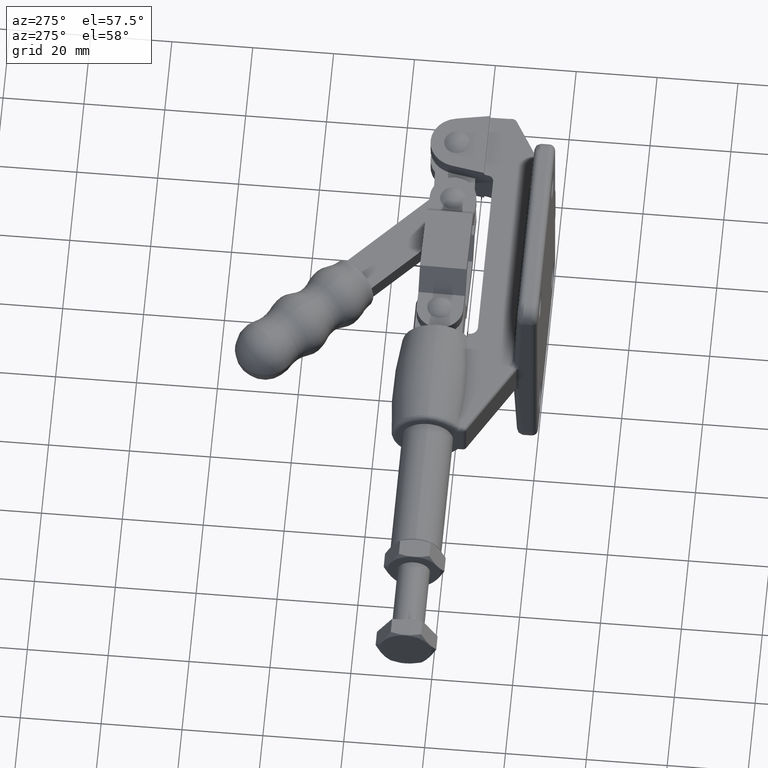
[diagram: clean part render]
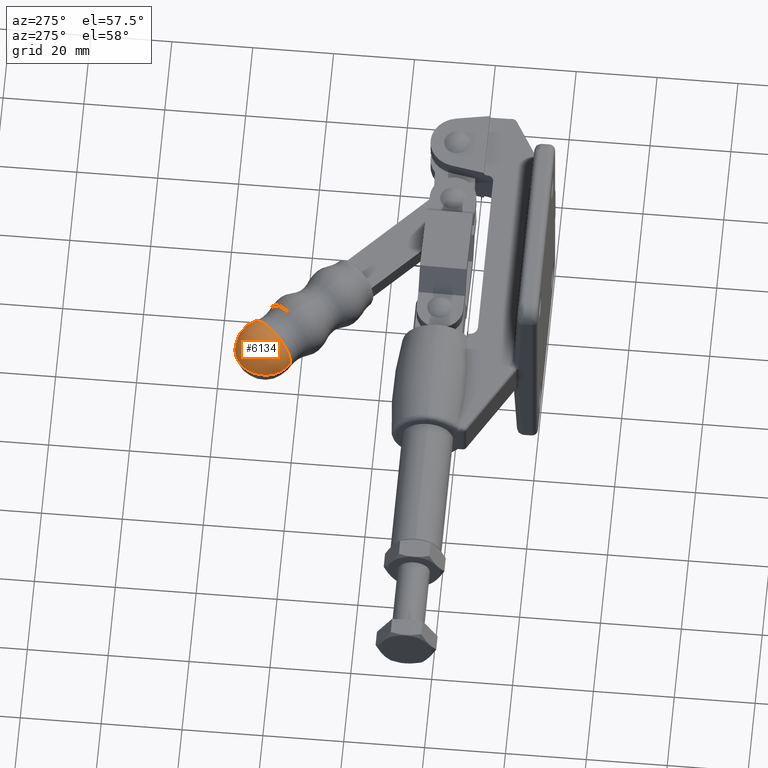
[diagram: same view with one face highlighted and labeled with its STEP entity id]
A machine part, auxiliary view. The second image highlights one B-rep face of the part: STEP entity #6134.
In plain terms, the highlighted spherical surface has radius 7.4635 mm.
Its self-contained STEP definition (entity closure, byte-faithful):
#286 = AXIS2_PLACEMENT_3D ( 'NONE', #1015, #6261, #1760 ) ;
#811 = CIRCLE ( 'NONE', #3780, 7.463467123109940500 ) ;
#1015 = CARTESIAN_POINT ( 'NONE',  ( -67.41704534399225700, 67.53325447251415900, -0.05000000000000057900 ) ) ;
#1312 = AXIS2_PLACEMENT_3D ( 'NONE', #1825, #7069, #2587 ) ;
#1370 = AXIS2_PLACEMENT_3D ( 'NONE', #8633, #4188, #9378 ) ;
#1641 = CIRCLE ( 'NONE', #1312, 7.159688757698106100 ) ;
#1760 = DIRECTION ( 'NONE',  ( 1.000000000000000000, 0.0000000000000000000, 7.263394844524550800E-018 ) ) ;
#1825 = CARTESIAN_POINT ( 'NONE',  ( -65.88917488524043600, 66.08142450591738300, -0.05000000000000057200 ) ) ;
#1844 = VERTEX_POINT ( 'NONE', #9415 ) ;
#2109 = ORIENTED_EDGE ( 'NONE', *, *, #8111, .T. ) ;
#2587 = DIRECTION ( 'NONE',  ( 0.0000000000000000000, 0.0000000000000000000, 1.000000000000000000 ) ) ;
#2784 = DIRECTION ( 'NONE',  ( 0.6888374986405894100, 0.7249157885344861300, 7.263394844524537000E-018 ) ) ;
#3172 = CIRCLE ( 'NONE', #286, 7.463467123109940500 ) ;
#3545 = VERTEX_POINT ( 'NONE', #9492 ) ;
#3780 = AXIS2_PLACEMENT_3D ( 'NONE', #4497, #9687, #5257 ) ;
#3801 = EDGE_LOOP ( 'NONE', ( #9690, #9161, #2109, #7264 ) ) ;
#3869 = EDGE_CURVE ( 'NONE', #3545, #9109, #3172, .T. ) ;
#3929 = EDGE_CURVE ( 'NONE', #8073, #1844, #1641, .T. ) ;
#4188 = DIRECTION ( 'NONE',  ( -0.7249157885344862400, 0.6888374986405893000, -3.399533016019971100E-018 ) ) ;
#4497 = CARTESIAN_POINT ( 'NONE',  ( -67.41704534399225700, 67.53325447251415900, -0.05000000000000057900 ) ) ;
#4909 = CARTESIAN_POINT ( 'NONE',  ( -72.82743049874272900, 72.67437049678349600, -0.05000000000000060600 ) ) ;
#5257 = DIRECTION ( 'NONE',  ( -1.000000000000000000, 0.0000000000000000000, -9.170035991212244900E-017 ) ) ;
#6134 = ADVANCED_FACE ( 'NONE', ( #7359 ), #8619, .T. ) ;
#6258 = EDGE_CURVE ( 'NONE', #8073, #9109, #811, .T. ) ;
#6261 = DIRECTION ( 'NONE',  ( -7.529514176957556300E-018, -2.988702988605706800E-018, 1.000000000000000000 ) ) ;
#7068 = CARTESIAN_POINT ( 'NONE',  ( -70.82103698013833100, 60.89125308446917700, -0.05000000000000150200 ) ) ;
#7069 = DIRECTION ( 'NONE',  ( -0.7249157885344862400, 0.6888374986405893000, -3.399533016019971100E-018 ) ) ;
#7255 = DIRECTION ( 'NONE',  ( 7.467673893298373100E-018, 2.923623781854532300E-018, -1.000000000000000000 ) ) ;
#7264 = ORIENTED_EDGE ( 'NONE', *, *, #3869, .T. ) ;
#7359 = FACE_OUTER_BOUND ( 'NONE', #3801, .T. ) ;
#7466 = AXIS2_PLACEMENT_3D ( 'NONE', #8691, #7255, #2784 ) ;
#7701 = CIRCLE ( 'NONE', #1370, 7.159688757698106100 ) ;
#8073 = VERTEX_POINT ( 'NONE', #7068 ) ;
#8111 = EDGE_CURVE ( 'NONE', #1844, #3545, #7701, .T. ) ;
#8619 = SPHERICAL_SURFACE ( 'NONE', #7466, 7.463467123109939600 ) ;
#8633 = CARTESIAN_POINT ( 'NONE',  ( -65.88917488524043600, 66.08142450591738300, -0.05000000000000057200 ) ) ;
#8691 = CARTESIAN_POINT ( 'NONE',  ( -67.41704534399225700, 67.53325447251415900, -0.05000000000000057900 ) ) ;
#9109 = VERTEX_POINT ( 'NONE', #4909 ) ;
#9161 = ORIENTED_EDGE ( 'NONE', *, *, #3929, .T. ) ;
#9378 = DIRECTION ( 'NONE',  ( 0.0000000000000000000, 0.0000000000000000000, 1.000000000000000000 ) ) ;
#9415 = CARTESIAN_POINT ( 'NONE',  ( -65.88917488524042200, 66.08142450591739700, 7.109688757698098300 ) ) ;
#9492 = CARTESIAN_POINT ( 'NONE',  ( -60.95731279034251300, 71.27159592736561000, -0.05000000000000051600 ) ) ;
#9687 = DIRECTION ( 'NONE',  ( 9.188777796124440100E-017, 9.176528299661968800E-017, -1.000000000000000000 ) ) ;
#9690 = ORIENTED_EDGE ( 'NONE', *, *, #6258, .F. ) ;